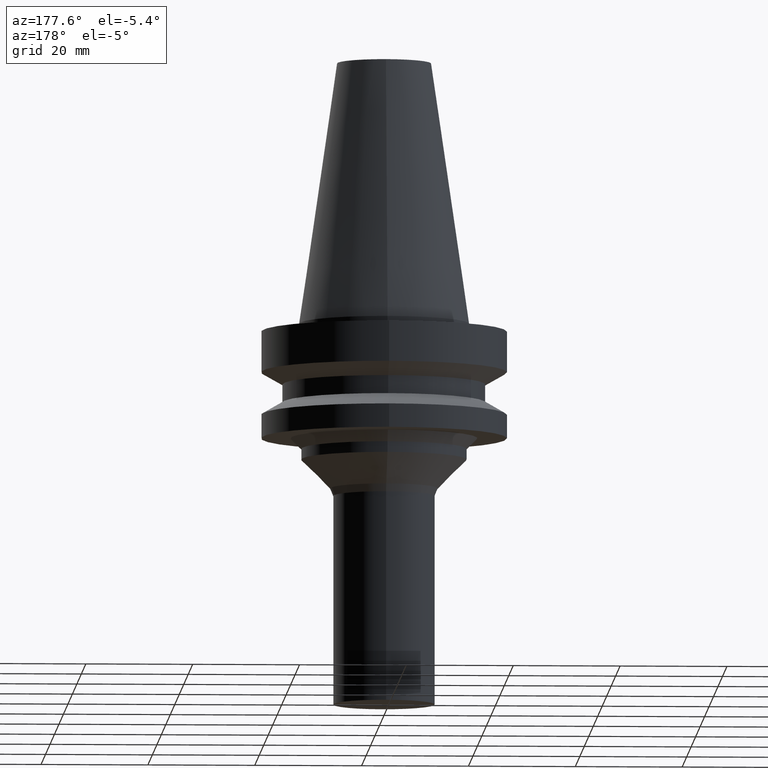
[diagram: clean part render]
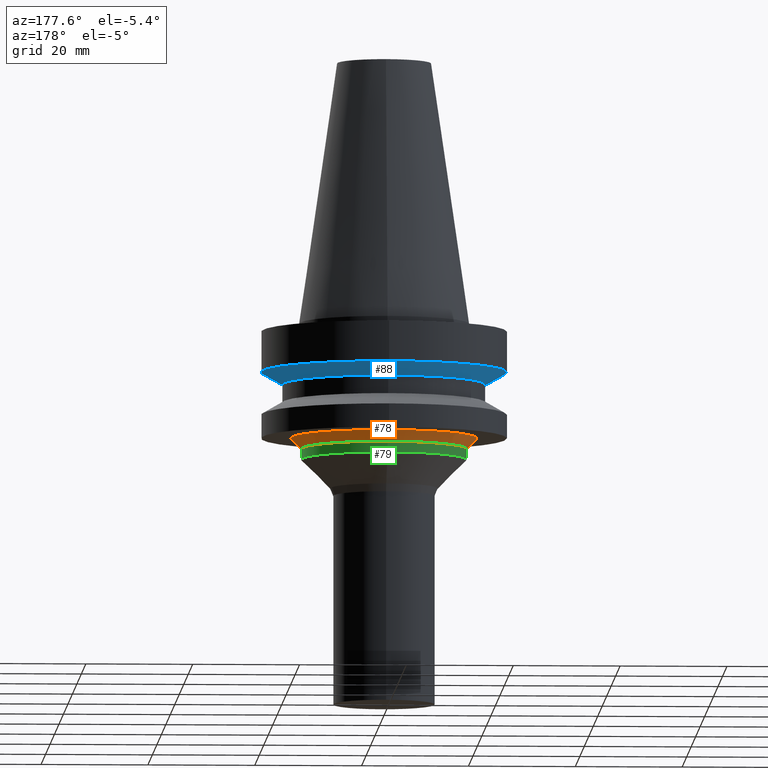
[diagram: same view with three faces highlighted in distinct colors, each labeled with its STEP entity id]
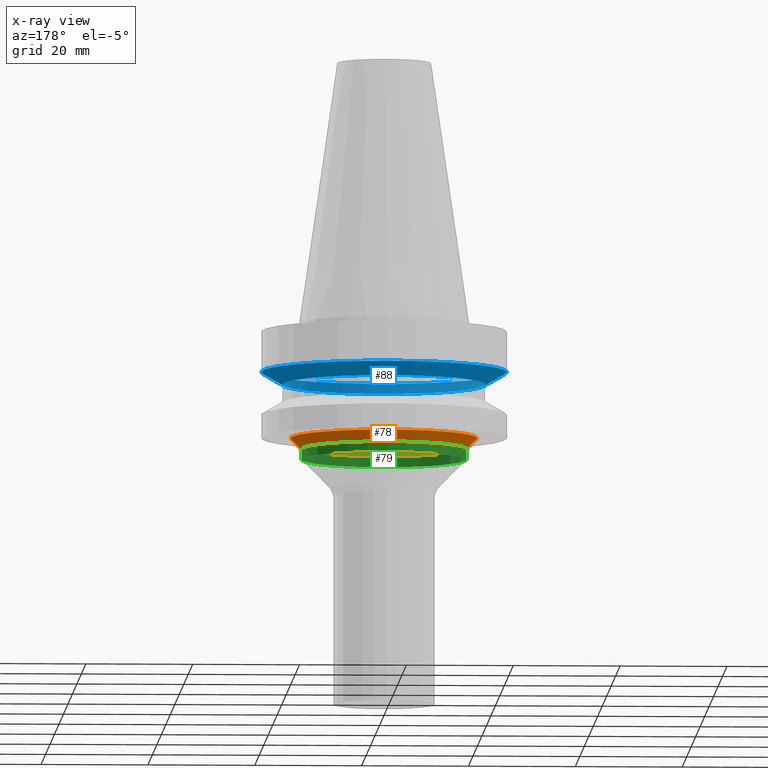
[diagram: x-ray of the same camera — body ghosted, the three highlighted faces saturated]
A machine part, auxiliary view with three faces highlighted in distinct colors.
The next image is the same camera in x-ray (body ghosted, the three faces saturated) — at least one of them is partly hidden behind the body in this view.
Their STEP definitions:

[orange] entity #78 — the highlighted conical surface has half-angle 45 deg.
#78=ADVANCED_FACE('',(#101,#102),#103,.T.);
#101=FACE_BOUND('',#147,.T.);
#102=FACE_BOUND('',#148,.T.);
#103=CONICAL_SURFACE('',#149,16.5,0.785398163397448);
#147=EDGE_LOOP('',(#199));
#148=EDGE_LOOP('',(#200));
#149=AXIS2_PLACEMENT_3D('',#201,#202,#203);
#199=ORIENTED_EDGE('',*,*,#266,.F.);
#200=ORIENTED_EDGE('',*,*,#265,.T.);
#201=CARTESIAN_POINT('',(1.40834381901946E-015,2.81668763803891E-015,-23.0));
#202=DIRECTION('',(-6.12323399573677E-017,-1.22464679914735E-016,1.0));
#203=DIRECTION('',(-1.23259516440783E-032,1.0,1.22464679914735E-016));
#265=EDGE_CURVE('',#283,#283,#284,.T.);
#266=EDGE_CURVE('',#285,#285,#286,.T.);
#283=VERTEX_POINT('',#313);
#284=CIRCLE('',#314,17.5);
#285=VERTEX_POINT('',#315);
#286=CIRCLE('',#316,15.5);
#313=CARTESIAN_POINT('',(1.34711147906209E-015,17.5,-22.0));
#314=AXIS2_PLACEMENT_3D('',#346,#347,#348);
#315=CARTESIAN_POINT('',(1.46957615897682E-015,15.5,-24.0));
#316=AXIS2_PLACEMENT_3D('',#349,#350,#351);
#346=CARTESIAN_POINT('',(1.34711147906209E-015,2.69422295812418E-015,-22.0));
#347=DIRECTION('',(6.12323399573677E-017,1.22464679914735E-016,-1.0));
#348=DIRECTION('',(-1.23259516440783E-032,1.0,1.22464679914735E-016));
#349=CARTESIAN_POINT('',(1.46957615897682E-015,2.93915231795365E-015,-24.0));
#350=DIRECTION('',(6.12323399573677E-017,1.22464679914735E-016,-1.0));
#351=DIRECTION('',(-1.23259516440783E-032,1.0,1.22464679914735E-016));

[blue] entity #88 — the highlighted conical surface has half-angle 60 deg.
#88=ADVANCED_FACE('',(#130,#131),#132,.T.);
#130=FACE_BOUND('',#176,.T.);
#131=FACE_BOUND('',#177,.T.);
#132=CONICAL_SURFACE('',#178,21.0,1.04719739053406);
#176=EDGE_LOOP('',(#248));
#177=EDGE_LOOP('',(#249));
#178=AXIS2_PLACEMENT_3D('',#250,#251,#252);
#248=ORIENTED_EDGE('',*,*,#271,.F.);
#249=ORIENTED_EDGE('',*,*,#275,.T.);
#250=CARTESIAN_POINT('',(6.58535483796871E-016,1.31707096759374E-015,-10.754700608459));
#251=DIRECTION('',(-6.12323399573677E-017,-1.22464679914735E-016,1.0));
#252=DIRECTION('',(-1.23259516440783E-032,1.0,1.22464679914735E-016));
#271=EDGE_CURVE('',#295,#295,#296,.T.);
#275=EDGE_CURVE('',#303,#303,#304,.T.);
#295=VERTEX_POINT('',#325);
#296=CIRCLE('',#326,19.0);
#303=VERTEX_POINT('',#333);
#304=CIRCLE('',#334,23.0);
#325=CARTESIAN_POINT('',(7.29240525945849E-016,19.0,-11.9094015752717));
#326=AXIS2_PLACEMENT_3D('',#364,#365,#366);
#333=CARTESIAN_POINT('',(5.87830441647893E-016,23.0,-9.59999964164628));
#334=AXIS2_PLACEMENT_3D('',#376,#377,#378);
#364=CARTESIAN_POINT('',(7.29240525945849E-016,1.4584810518917E-015,-11.9094015752717));
#365=DIRECTION('',(6.12323399573677E-017,1.22464679914735E-016,-1.0));
#366=DIRECTION('',(-1.23259516440783E-032,1.0,1.22464679914735E-016));
#376=CARTESIAN_POINT('',(5.87830441647893E-016,1.17566088329579E-015,-9.59999964164628));
#377=DIRECTION('',(6.12323399573677E-017,1.22464679914735E-016,-1.0));
#378=DIRECTION('',(-1.23259516440783E-032,1.0,1.22464679914735E-016));

[green] entity #79 — the highlighted cylindrical surface (bore or boss wall) has radius 15.5 mm, axis along (-0, -0, 1).
#79=ADVANCED_FACE('',(#104,#105),#106,.T.);
#104=FACE_BOUND('',#150,.T.);
#105=FACE_BOUND('',#151,.T.);
#106=CYLINDRICAL_SURFACE('',#152,15.5);
#150=EDGE_LOOP('',(#204));
#151=EDGE_LOOP('',(#205));
#152=AXIS2_PLACEMENT_3D('',#206,#207,#208);
#204=ORIENTED_EDGE('',*,*,#267,.F.);
#205=ORIENTED_EDGE('',*,*,#266,.T.);
#206=CARTESIAN_POINT('',(1.53080849893419E-015,3.06161699786838E-015,-25.0));
#207=DIRECTION('',(-6.12323399573677E-017,-1.22464679914735E-016,1.0));
#208=DIRECTION('',(-1.23259516440783E-032,1.0,1.22464679914735E-016));
#266=EDGE_CURVE('',#285,#285,#286,.T.);
#267=EDGE_CURVE('',#287,#287,#288,.T.);
#285=VERTEX_POINT('',#315);
#286=CIRCLE('',#316,15.5);
#287=VERTEX_POINT('',#317);
#288=CIRCLE('',#318,15.5);
#315=CARTESIAN_POINT('',(1.46957615897682E-015,15.5,-24.0));
#316=AXIS2_PLACEMENT_3D('',#349,#350,#351);
#317=CARTESIAN_POINT('',(1.59204083889156E-015,15.5,-25.9999999999999));
#318=AXIS2_PLACEMENT_3D('',#352,#353,#354);
#349=CARTESIAN_POINT('',(1.46957615897682E-015,2.93915231795365E-015,-24.0));
#350=DIRECTION('',(6.12323399573677E-017,1.22464679914735E-016,-1.0));
#351=DIRECTION('',(-1.23259516440783E-032,1.0,1.22464679914735E-016));
#352=CARTESIAN_POINT('',(1.59204083889156E-015,3.18408167778311E-015,-25.9999999999999));
#353=DIRECTION('',(6.12323399573677E-017,1.22464679914735E-016,-1.0));
#354=DIRECTION('',(-1.23259516440783E-032,1.0,1.22464679914735E-016));